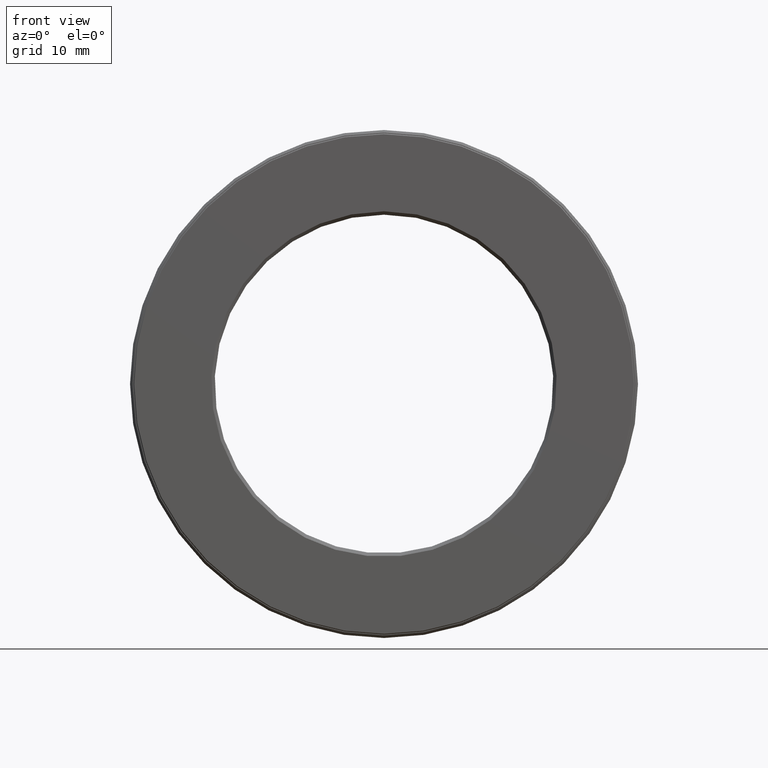
[diagram: clean part render]
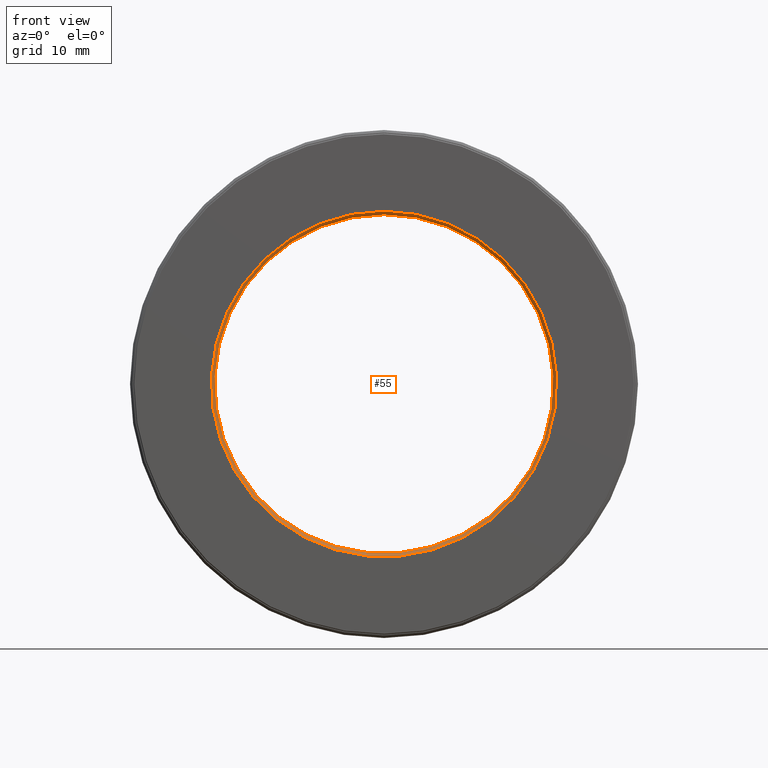
[diagram: same view with one face highlighted and labeled with its STEP entity id]
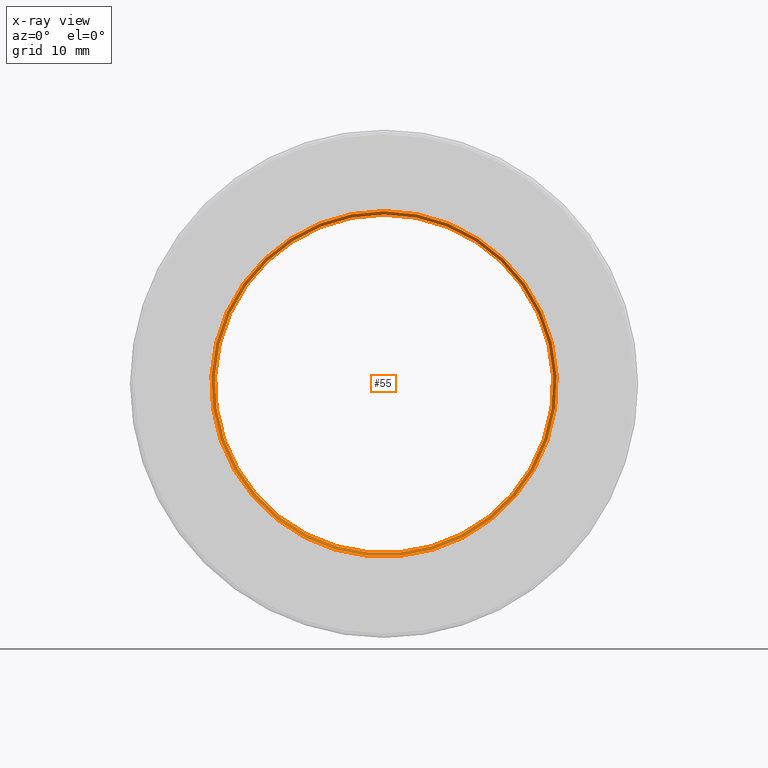
[diagram: x-ray of the same camera — body ghosted, the highlighted face saturated]
A machine part, front view. The second image highlights one B-rep face of the part: STEP entity #55.
The next image is the same camera in x-ray: the body ghosted, the highlighted face saturated — about 0% of this face is hidden behind the body in this view.
In plain terms, the highlighted conical surface has half-angle 45 deg.
Its self-contained STEP definition (entity closure, byte-faithful):
#55 = ADVANCED_FACE ( 'NONE', ( #567, #359 ), #227, .F. ) ;
#65 = CARTESIAN_POINT ( 'NONE',  ( 0.0000000000000000000, 6.829619984160658000E-017, 1.019999999999999800 ) ) ;
#82 = EDGE_LOOP ( 'NONE', ( #552 ) ) ;
#88 = CARTESIAN_POINT ( 'NONE',  ( 0.0000000000000000000, 0.02000000000000033300, 0.0000000000000000000 ) ) ;
#124 = EDGE_CURVE ( 'NONE', #526, #526, #436, .T. ) ;
#131 = AXIS2_PLACEMENT_3D ( 'NONE', #207, #307, #454 ) ;
#136 = DIRECTION ( 'NONE',  ( -0.0000000000000000000, 1.000000000000000000, -0.0000000000000000000 ) ) ;
#144 = VERTEX_POINT ( 'NONE', #65 ) ;
#205 = ORIENTED_EDGE ( 'NONE', *, *, #428, .F. ) ;
#207 = CARTESIAN_POINT ( 'NONE',  ( 0.0000000000000000000, 6.829619984160658000E-017, 0.0000000000000000000 ) ) ;
#219 = AXIS2_PLACEMENT_3D ( 'NONE', #312, #517, #316 ) ;
#227 = CONICAL_SURFACE ( 'NONE', #219, 0.9999999999999998900, 0.7853981633974397300 ) ;
#281 = CIRCLE ( 'NONE', #131, 1.019999999999999800 ) ;
#282 = EDGE_LOOP ( 'NONE', ( #205 ) ) ;
#307 = DIRECTION ( 'NONE',  ( -0.0000000000000000000, 1.000000000000000000, -0.0000000000000000000 ) ) ;
#312 = CARTESIAN_POINT ( 'NONE',  ( 0.0000000000000000000, 0.02000000000000033300, 0.0000000000000000000 ) ) ;
#316 = DIRECTION ( 'NONE',  ( 0.0000000000000000000, 0.0000000000000000000, -1.000000000000000000 ) ) ;
#359 = FACE_BOUND ( 'NONE', #82, .T. ) ;
#428 = EDGE_CURVE ( 'NONE', #144, #144, #281, .T. ) ;
#436 = CIRCLE ( 'NONE', #452, 0.9999999999999998900 ) ;
#452 = AXIS2_PLACEMENT_3D ( 'NONE', #88, #136, #530 ) ;
#454 = DIRECTION ( 'NONE',  ( 0.0000000000000000000, 0.0000000000000000000, 1.000000000000000000 ) ) ;
#467 = CARTESIAN_POINT ( 'NONE',  ( 0.0000000000000000000, 0.02000000000000033300, 0.9999999999999998900 ) ) ;
#517 = DIRECTION ( 'NONE',  ( 0.0000000000000000000, -1.000000000000000000, 0.0000000000000000000 ) ) ;
#526 = VERTEX_POINT ( 'NONE', #467 ) ;
#530 = DIRECTION ( 'NONE',  ( 0.0000000000000000000, 0.0000000000000000000, 1.000000000000000000 ) ) ;
#552 = ORIENTED_EDGE ( 'NONE', *, *, #124, .T. ) ;
#567 = FACE_OUTER_BOUND ( 'NONE', #282, .T. ) ;